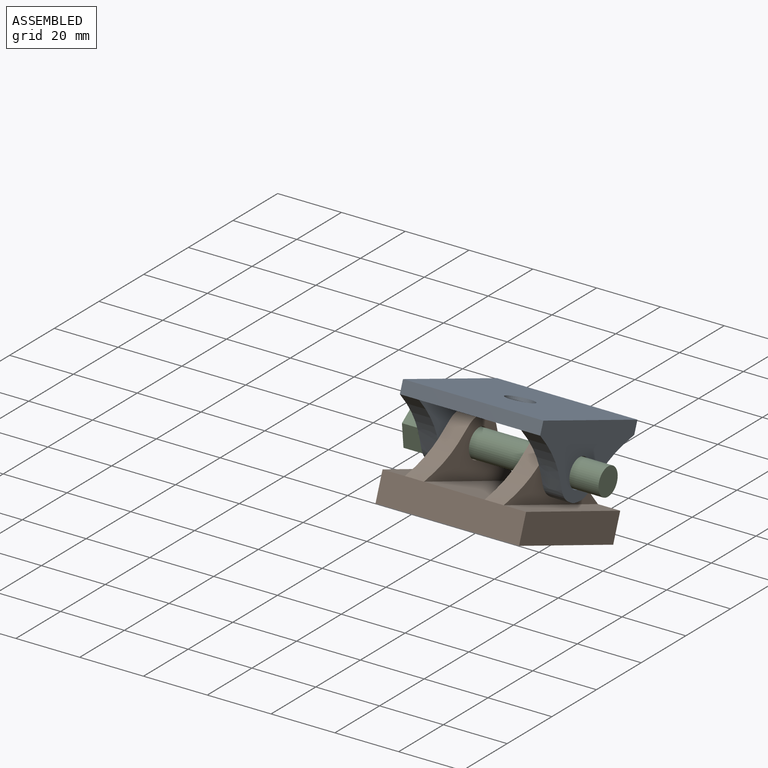
[diagram: assembled view]
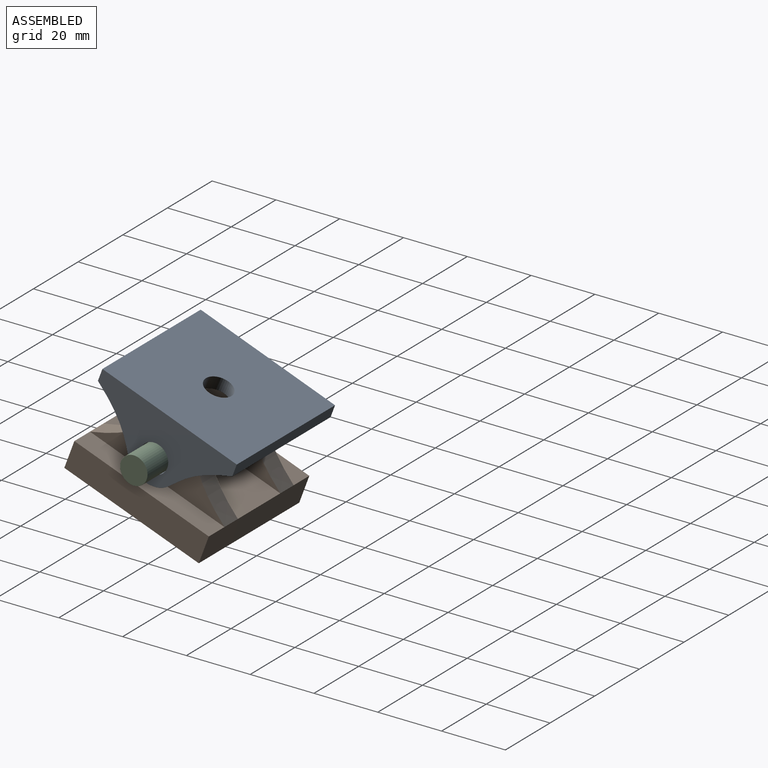
[diagram: assembled view, second angle]
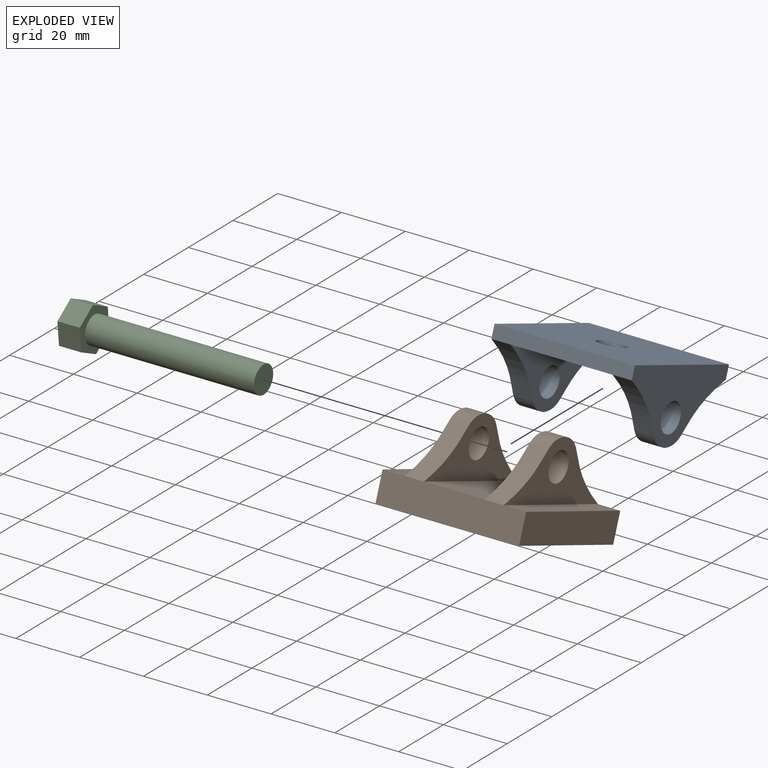
[diagram: exploded view]
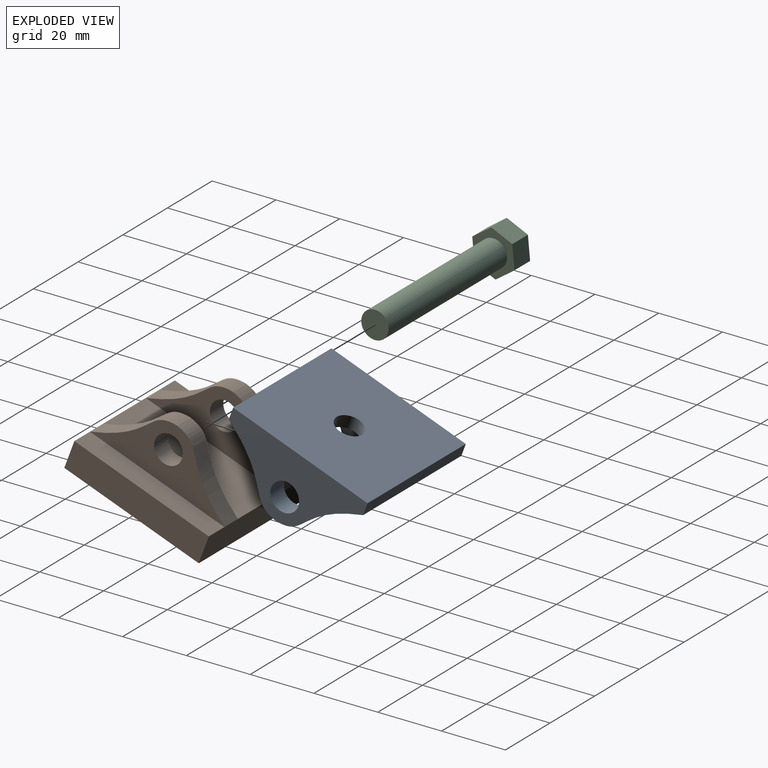
[diagram: exploded view, second angle]
ASSEMBLY  parts=3 mates=2
PART A: 15 faces, bbox 44x45x22 mm
  f0: plane 44x4mm, normal (0,-1,0), area 176mm2, adj f1,f3,f4,f7,f9,f12
  f1: plane 45x44mm, normal (0,0,-1), area 1923.3mm2, adj f0,f2,f4,f9,f14
  f2: plane 44x4mm, normal (0,1,0), area 176mm2, adj f1,f3,f4,f5,f9,f10
  f3: plane 45x32mm, normal (0,0,1), area 1383.3mm2, adj f0,f2,f8,f13,f14
  f4: plane 45x22mm, normal (-1,0,0), area 531.4mm2, adj f0,f1,f2,f5,f6,f7
  f5: extruded ~22.5x18mm, area 177.6mm2, adj f2,f4,f7,f8
  f6: cylinder r=4.5mm len=9mm, axis (-1,0,0), area 169.6mm2, adj f4,f8
  f7: extruded ~22.5x18mm, area 177.6mm2, adj f0,f4,f5,f8
  f8: plane 45x18mm, normal (1,0,0), area 351.4mm2, adj f3,f5,f6,f7
  f9: plane 45x22mm, normal (1,0,0), area 531.4mm2, adj f0,f1,f2,f10,f11,f12
  f10: extruded ~22.5x18mm, area 177.6mm2, adj f2,f9,f12,f13
  f11: cylinder r=4.5mm len=9mm, axis (1,0,0), area 169.6mm2, adj f9,f13
  f12: extruded ~22.5x18mm, area 177.6mm2, adj f0,f9,f10,f13
  f13: plane 45x18mm, normal (-1,0,0), area 351.4mm2, adj f3,f10,f11,f12
  f14: cylinder r=4.25mm len=8.5mm, axis (0,0,1), area 106.8mm2, adj f1,f3
PART B: 23 faces, bbox 45x45x27 mm
  f0: plane 45x18mm, normal (-1,0,0), area 353.7mm2, adj f4,f5,f6,f13
  f1: plane 45x9mm, normal (0,-1,0), area 405mm2, adj f3,f6,f11,f13,f14,f15,f16,f21
  f2: plane 45x9mm, normal (0,1,0), area 405mm2, adj f3,f4,f9,f13,f14,f15,f16,f21
  f3: plane 45x19mm, normal (0,0,1), area 855mm2, adj f1,f2,f7,f12
  f4: extruded ~22.5x18mm, area 177.5mm2, adj f0,f2,f6,f7
  f5: cylinder r=4.5mm len=9mm, axis (-1,0,0), area 169.6mm2, adj f0,f7
  f6: extruded ~22.5x18mm, area 177.5mm2, adj f0,f1,f4,f7
  f7: plane 45x18mm, normal (1,0,0), area 353.7mm2, adj f3,f4,f5,f6
  f8: plane 45x18mm, normal (1,0,0), area 353.7mm2, adj f9,f10,f11,f15
  f9: extruded ~22.5x18mm, area 177.5mm2, adj f2,f8,f11,f12
  f10: cylinder r=4.5mm len=9mm, axis (1,0,0), area 169.6mm2, adj f8,f12
  f11: extruded ~22.5x18mm, area 177.5mm2, adj f1,f8,f9,f12
  f12: plane 45x18mm, normal (-1,0,0), area 353.7mm2, adj f3,f9,f10,f11
  f13: plane 45x7mm, normal (0,0,1), area 315mm2, adj f0,f1,f2,f14
  f14: plane 45x9mm, normal (-1,0,0), area 405mm2, adj f1,f2,f13,f21
  f15: plane 45x7mm, normal (0,0,1), area 315mm2, adj f1,f2,f8,f16
  f16: plane 45x9mm, normal (1,0,0), area 405mm2, adj f1,f2,f15,f21
  f17: plane 39x5mm, normal (0,-1,0), area 195mm2, adj f18,f20,f21,f22
  f18: plane 39x5mm, normal (1,0,0), area 195mm2, adj f17,f19,f21,f22
  f19: plane 39x5mm, normal (0,1,0), area 195mm2, adj f18,f20,f21,f22
  f20: plane 39x5mm, normal (-1,0,0), area 195mm2, adj f17,f19,f21,f22
  f21: plane 45x45mm, normal (0,0,-1), area 504mm2, adj f1,f2,f14,f16,f17,f18,f19,f20
  f22: plane 39x39mm, normal (0,0,-1), area 1521mm2, adj f17,f18,f19,f20
PART C: 10 faces, bbox 13.1x14.5x60 mm
  f0: plane 7x6.04mm, normal (-0.56,-0.83,0), area 50.9mm2, adj f1,f5,f6,f7
  f1: plane 7x6.54mm, normal (0.44,-0.9,0), area 50.9mm2, adj f0,f2,f6,f7
  f2: plane 7.26x7mm, normal (1,-0.07,0), area 50.9mm2, adj f1,f3,f6,f7
  f3: plane 7x6.04mm, normal (0.56,0.83,0), area 50.9mm2, adj f2,f4,f6,f7
  f4: plane 7x6.54mm, normal (-0.44,0.9,0), area 50.9mm2, adj f3,f5,f6,f7
  f5: plane 7.26x7mm, normal (-1,0.07,0), area 50.9mm2, adj f0,f4,f6,f7
  f6: plane 14.52x13.07mm, normal (0,0,1), area 79.4mm2, adj f0,f1,f2,f3,f4,f5,f8
  f7: plane 14.52x13.07mm, normal (0,0,-1), area 137.5mm2, adj f0,f1,f2,f3,f4,f5
  f8: cylinder r=4.3mm len=53mm, axis (0,0,-1), area 1431.9mm2, adj f6,f9
  f9: plane 8.6x8.6mm, normal (0,0,1), area 58.1mm2, adj f8
PLACE A rot(axis=(1,0,0),159.4deg) t=(-29.79,23.74,-1.08)mm fixed
PLACE B rot(axis=(-1,0,0),20.5deg) t=(-23.29,-106.36,17.72)mm
PLACE C rot(axis=(-0.18,0.97,-0.18),91.8deg) t=(-36.79,-50.72,-37.33)mm
MATE revolute A.f6 <-> B.f5  axis (1,0,0) through (-23.79,-2.25,-6.27)mm
MATE fastened C.f8 <-> A.f6  axis (1,0,0) through (23.21,-2.25,-6.27)mm
